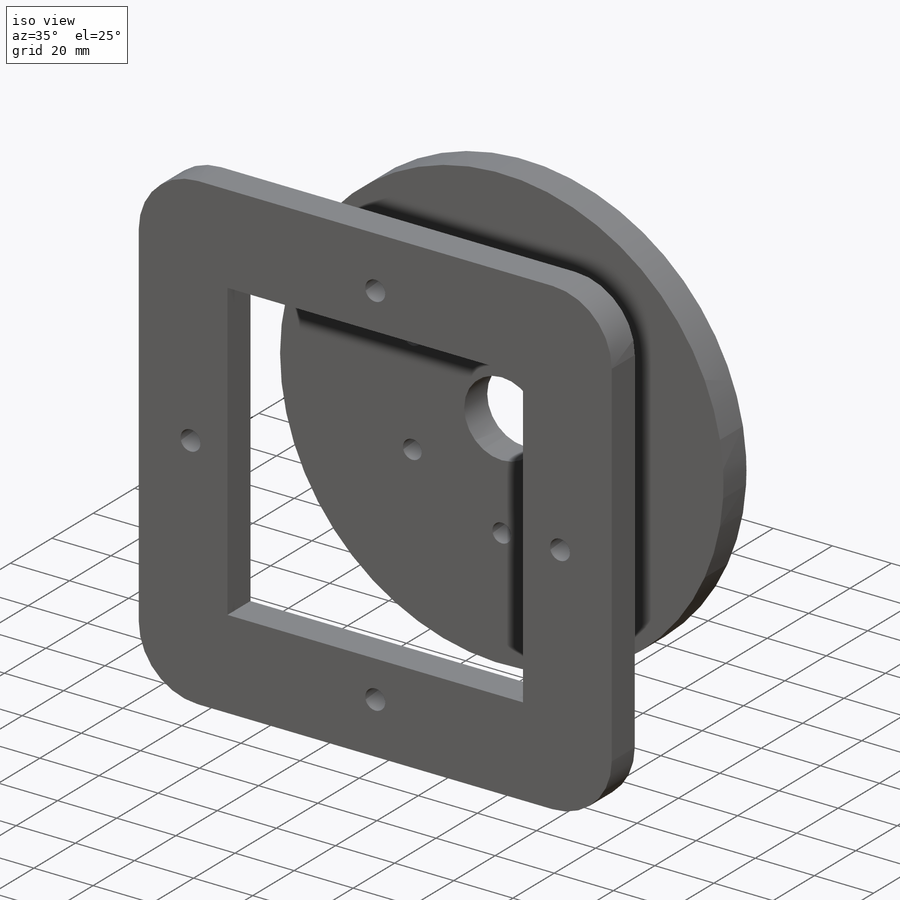
[diagram: iso view]
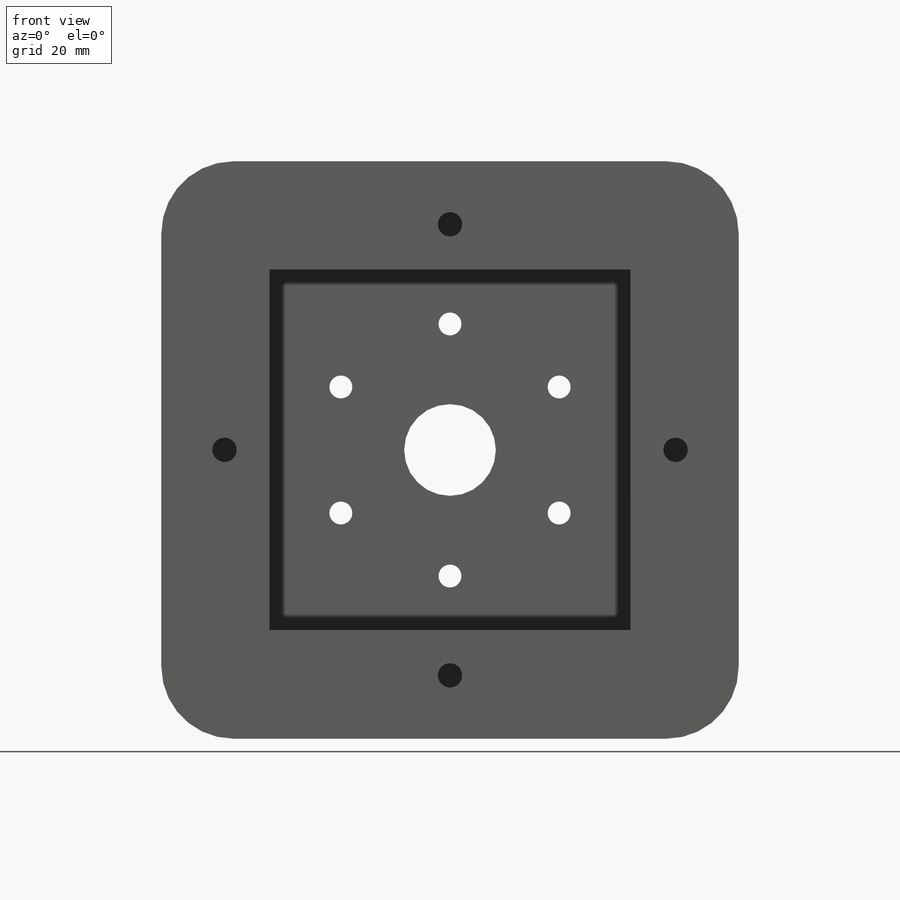
[diagram: front view]
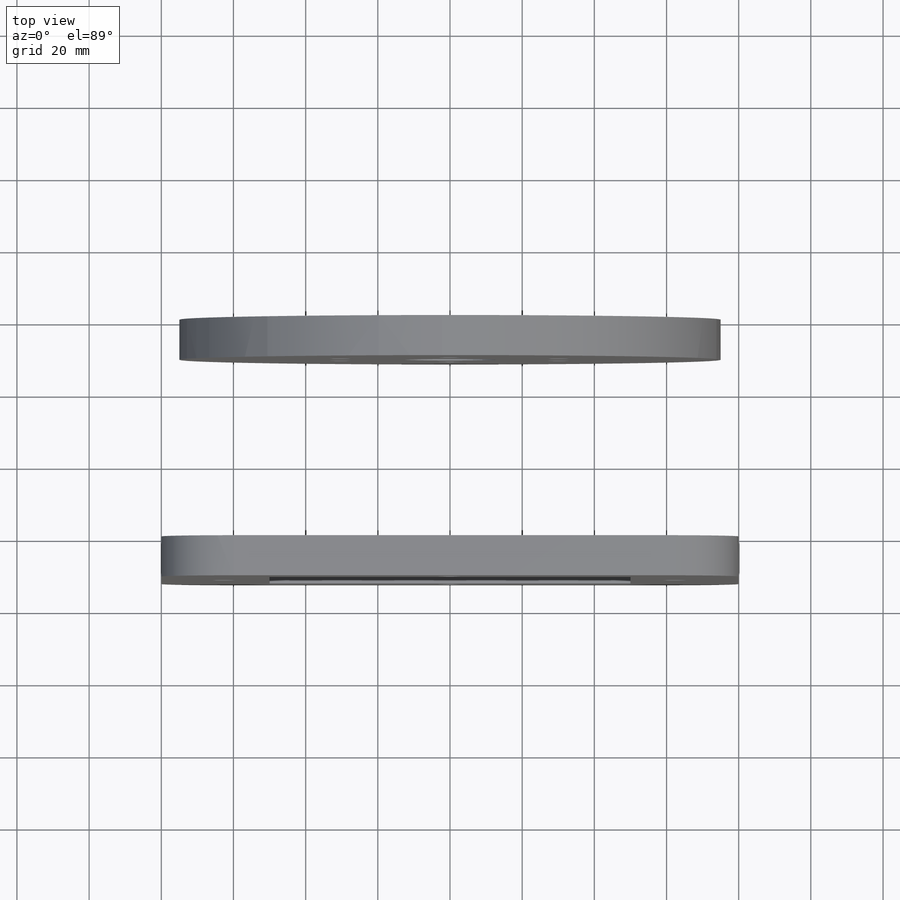
[diagram: top view]
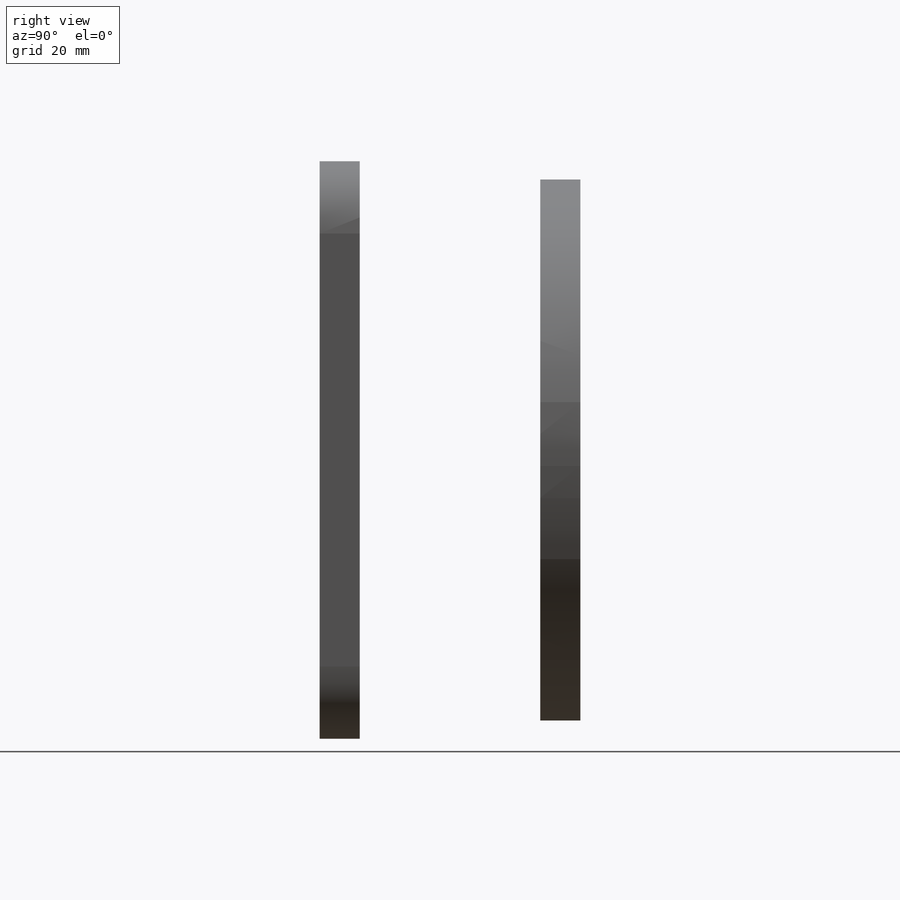
[diagram: right view]
SOLIDWORKS PART (.sldprt)
format: sldprt  version: not decoded by parser v0  size: 689,664 bytes
history: native  units: mm
features: sketch x8, extrude x5, material x1, cut_extrude x1 (+13 scaffold rows collapsed)
feature tree (28):
  scaffold x13  (default folders/planes/origin — collapsed)
  material  "Material <not specified>"
  sketch  "Sketch1"  dims[D1=279.4mm D2=50.0mm D3=60.0mm D4=15.0mm D5=10.0mm D7=30.0mm D8=10.0mm D9=35.0mm D6=20.0mm D10=12.0]
  sketch  "Sketch4"  dims[D1=150.0mm D2=25.4mm D3=0.0mm D4=0.0mm]
  extrude  "Boss-Extrude1"  Depth=11.1125mm
  sketch  "Sketch5"  dims[D1=100.0mm D2=150.0mm]
  extrude  "Boss-Extrude2"  Depth=11.1125mm
  sketch  "Sketch6"  dims[D1=180.0mm D2=100.0mm]
  extrude  "Boss-Extrude3"  Depth=11.1125mm
  sketch  "Sketch7"  dims[D1=0.0mm D2=0.0mm D3=0.0mm D4=0.0mm D5=0.0mm D6=0.0mm D7=0.0mm D8=0.0mm D9=0.0mm D10=0.0mm D11=0.0mm D12=0.0mm D13=0.0mm D14=0.0mm D15=0.0mm D16=0.0mm D17=0.0mm D18=0.0mm D19=0.0mm D20=0.0mm D21=0.0mm D22=0.0mm D23=0.0mm D24=0.0mm D25=0.0mm D26=0.0mm D27=0.0mm D28=0.0mm D29=0.0mm D30=0.0mm D31=0.0mm D32=0.0mm D33=0.0mm D34=0.0mm D35=0.0mm D36=0.0mm D37=0.0mm D38=0.0mm]
  extrude  "Boss-Extrude4"  Depth=11.1125mm
  sketch  "Sketch9"
  sketch  "Sketch8"  dims[D4=20.0mm D1=160.0mm D2=160.0mm D3=30.0mm]
  extrude  "Boss-Extrude5"  Depth=11.1125mm
  sketch  "Sketch10"
  cut_extrude  "Cut-Extrude1"  Depth=11.1125mm
decode coverage: 12 of 14 modeling features carry decoded parameters
note: suppression state not decoded; provenance and decode notes live in map.json
